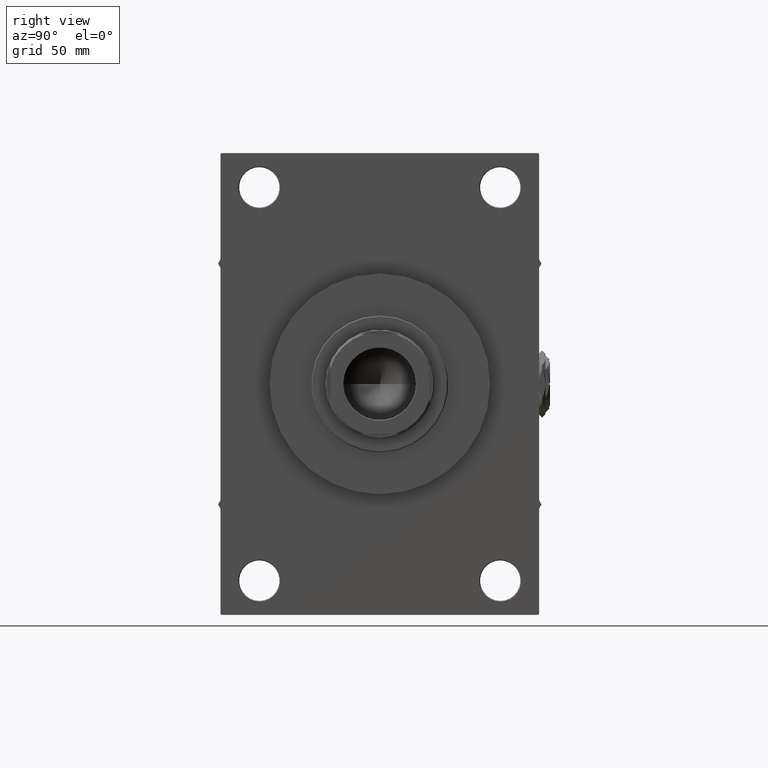
[diagram: clean part render]
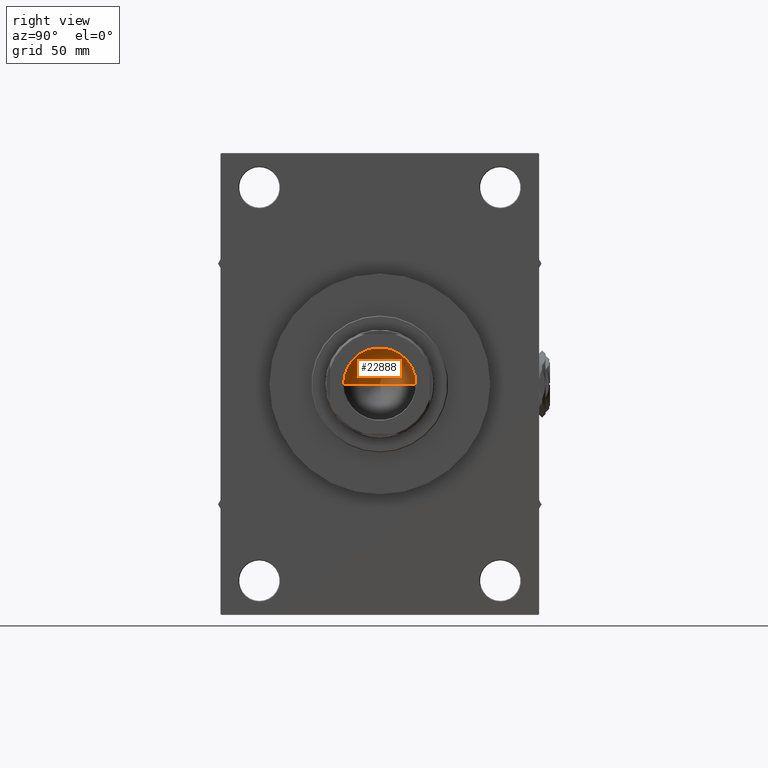
[diagram: same view with one face highlighted and labeled with its STEP entity id]
A machine part, right view. The second image highlights one B-rep face of the part: STEP entity #22888.
In plain terms, the highlighted conical surface has half-angle 59 deg.
Its self-contained STEP definition (entity closure, byte-faithful):
#2393 = ORIENTED_EDGE ( 'NONE', *, *, #40926, .T. ) ;
#3661 = CIRCLE ( 'NONE', #33435, 23.24999999999998579 ) ;
#4021 = AXIS2_PLACEMENT_3D ( 'NONE', #11713, #7691, #42448 ) ;
#4151 = FACE_OUTER_BOUND ( 'NONE', #43293, .T. ) ;
#4891 = ORIENTED_EDGE ( 'NONE', *, *, #5783, .F. ) ;
#5783 = EDGE_CURVE ( 'NONE', #35875, #23455, #9661, .T. ) ;
#7691 = DIRECTION ( 'NONE',  ( -0.000000000000000000, -0.000000000000000000, 1.000000000000000000 ) ) ;
#7745 = DIRECTION ( 'NONE',  ( 1.000000000000000000, 0.000000000000000000, 0.000000000000000000 ) ) ;
#9019 = EDGE_CURVE ( 'NONE', #35875, #13494, #14104, .T. ) ;
#9162 = CARTESIAN_POINT ( 'NONE',  ( 23.24999999999998579, 0.000000000000000000, 136.9999999999999716 ) ) ;
#9661 = LINE ( 'NONE', #9162, #21269 ) ;
#10783 = DIRECTION ( 'NONE',  ( -0.000000000000000000, -0.000000000000000000, 1.000000000000000000 ) ) ;
#11713 = CARTESIAN_POINT ( 'NONE',  ( 0.000000000000000000, 0.000000000000000000, 136.9999999999999716 ) ) ;
#13494 = VERTEX_POINT ( 'NONE', #48551 ) ;
#14104 = LINE ( 'NONE', #17392, #30984 ) ;
#17392 = CARTESIAN_POINT ( 'NONE',  ( -23.24999999999998579, 2.847303808017594561E-15, 136.9999999999999716 ) ) ;
#18093 = CARTESIAN_POINT ( 'NONE',  ( 0.000000000000000000, 0.000000000000000000, 136.9999999999999716 ) ) ;
#18145 = CARTESIAN_POINT ( 'NONE',  ( -1.584115414415908206E-14, 0.000000000000000000, 123.0299906076091929 ) ) ;
#21269 = VECTOR ( 'NONE', #43660, 1000.000000000000000 ) ;
#22888 = ADVANCED_FACE ( 'NONE', ( #4151 ), #47477, .F. ) ;
#23455 = VERTEX_POINT ( 'NONE', #30252 ) ;
#30252 = CARTESIAN_POINT ( 'NONE',  ( 23.24999999999998579, 0.000000000000000000, 136.9999999999999716 ) ) ;
#30984 = VECTOR ( 'NONE', #40322, 1000.000000000000000 ) ;
#33435 = AXIS2_PLACEMENT_3D ( 'NONE', #18093, #10783, #7745 ) ;
#35875 = VERTEX_POINT ( 'NONE', #18145 ) ;
#40322 = DIRECTION ( 'NONE',  ( -0.8571673007021117785, 1.049727191138617956E-16, 0.5150380749100550437 ) ) ;
#40926 = EDGE_CURVE ( 'NONE', #13494, #23455, #3661, .T. ) ;
#42448 = DIRECTION ( 'NONE',  ( 1.000000000000000000, 0.000000000000000000, 0.000000000000000000 ) ) ;
#43293 = EDGE_LOOP ( 'NONE', ( #4891, #49454, #2393 ) ) ;
#43660 = DIRECTION ( 'NONE',  ( 0.8571673007021117785, 0.000000000000000000, 0.5150380749100550437 ) ) ;
#47477 = CONICAL_SURFACE ( 'NONE', #4021, 23.24999999999998579, 1.029744258676653423 ) ;
#48551 = CARTESIAN_POINT ( 'NONE',  ( -23.24999999999998579, 2.847303808017594561E-15, 136.9999999999999716 ) ) ;
#49454 = ORIENTED_EDGE ( 'NONE', *, *, #9019, .T. ) ;